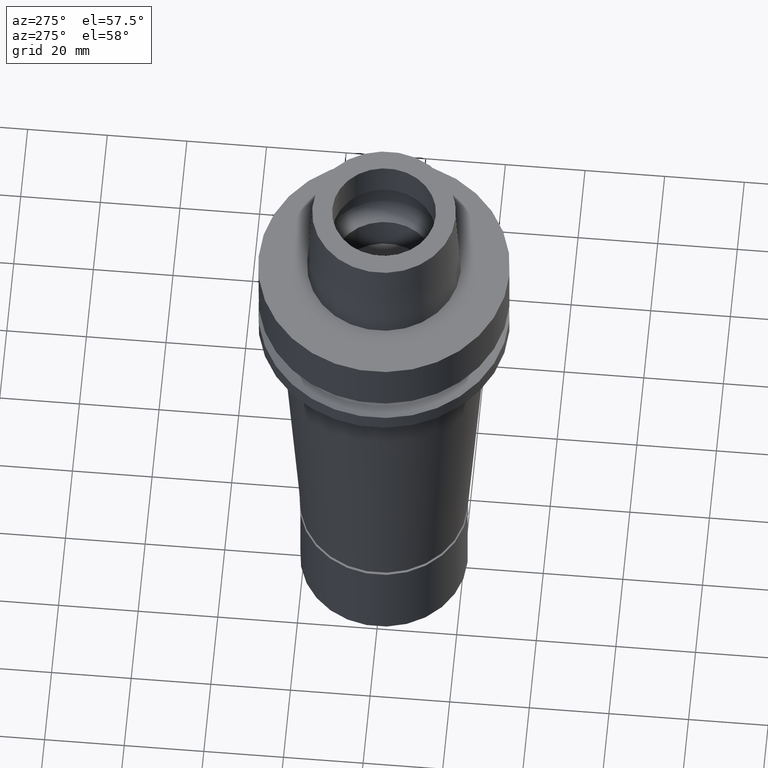
[diagram: clean part render]
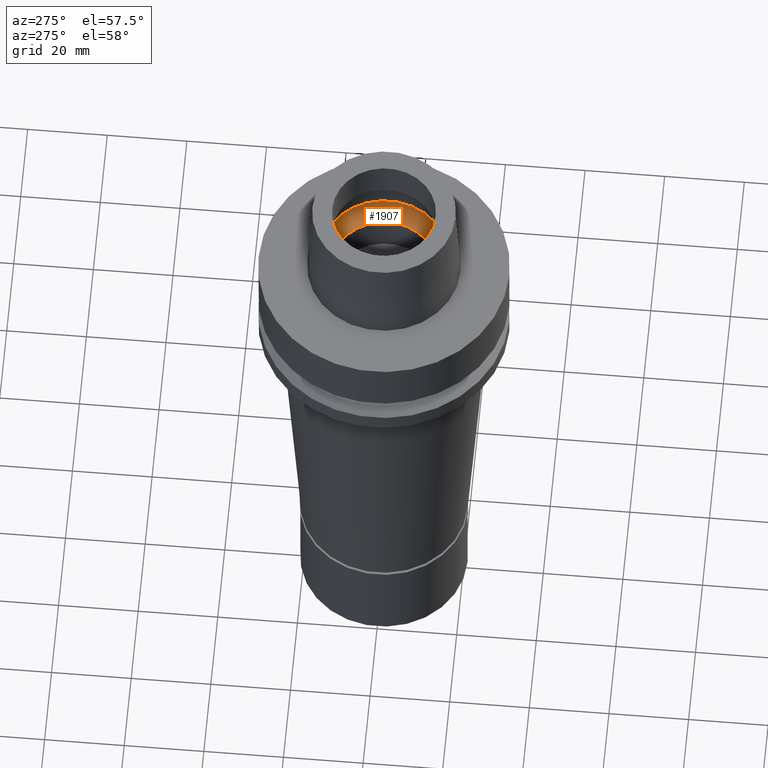
[diagram: same view with one face highlighted and labeled with its STEP entity id]
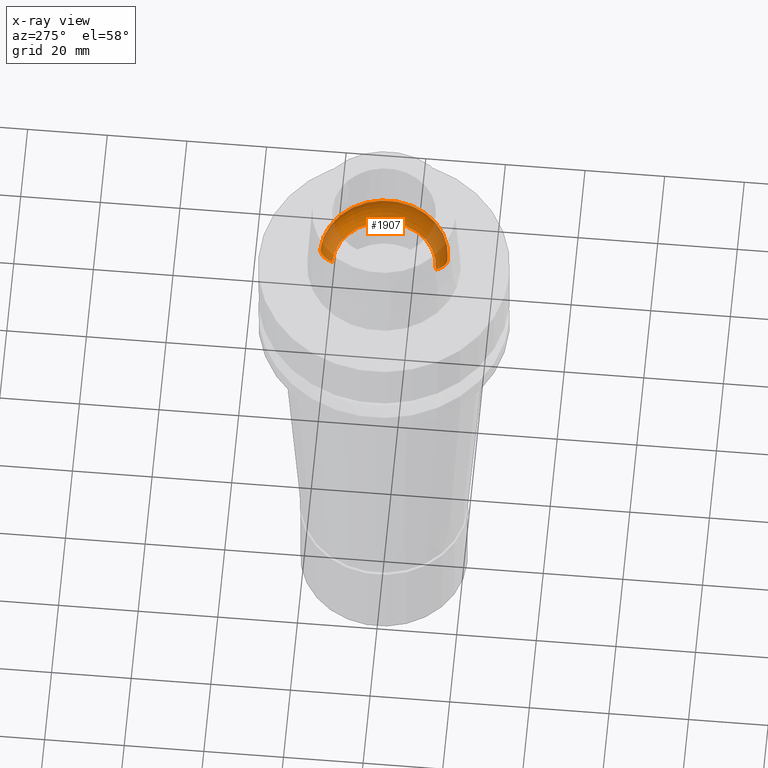
[diagram: x-ray of the same camera — body ghosted, the highlighted face saturated]
A machine part, auxiliary view. The second image highlights one B-rep face of the part: STEP entity #1907.
The next image is the same camera in x-ray: the body ghosted, the highlighted face saturated — about 30% of this face is hidden behind the body in this view.
In plain terms, the highlighted toroidal blend (fillet) surface has major radius 10 mm and minor (blend) radius 6 mm.
Its self-contained STEP definition (entity closure, byte-faithful):
#24 = EDGE_CURVE ( 'NONE', #341, #1594, #2825, .T. ) ;
#41 = AXIS2_PLACEMENT_3D ( 'NONE', #552, #1195, #2345 ) ;
#44 = TOROIDAL_SURFACE ( 'NONE', #2260, 10.00000000000000000, 6.000000000000000000 ) ;
#166 = DIRECTION ( 'NONE',  ( 0.0000000000000000000, 1.000000000000000000, 0.0000000000000000000 ) ) ;
#255 = DIRECTION ( 'NONE',  ( 0.0000000000000000000, 0.5000000000000169864, -0.8660254037844289376 ) ) ;
#341 = VERTEX_POINT ( 'NONE', #1692 ) ;
#368 = AXIS2_PLACEMENT_3D ( 'NONE', #2110, #1042, #1259 ) ;
#393 = CARTESIAN_POINT ( 'NONE',  ( 0.0000000000000000000, 0.0000000000000000000, 5.245999999999999552 ) ) ;
#522 = AXIS2_PLACEMENT_3D ( 'NONE', #1228, #2111, #1011 ) ;
#552 = CARTESIAN_POINT ( 'NONE',  ( 0.0000000000000000000, -10.00000000000000000, 5.245999999999999552 ) ) ;
#649 = DIRECTION ( 'NONE',  ( 0.0000000000000000000, 0.0000000000000000000, 1.000000000000000000 ) ) ;
#1011 = DIRECTION ( 'NONE',  ( 0.0000000000000000000, 1.000000000000000000, 0.0000000000000000000 ) ) ;
#1042 = DIRECTION ( 'NONE',  ( 0.0000000000000000000, 0.0000000000000000000, 1.000000000000000000 ) ) ;
#1060 = EDGE_LOOP ( 'NONE', ( #2696, #2824, #2391, #1733 ) ) ;
#1107 = AXIS2_PLACEMENT_3D ( 'NONE', #1971, #2188, #255 ) ;
#1129 = EDGE_CURVE ( 'NONE', #2778, #341, #1981, .T. ) ;
#1181 = CARTESIAN_POINT ( 'NONE',  ( 0.0000000000000000000, 13.00000000000000000, 0.04984757729343999855 ) ) ;
#1195 = DIRECTION ( 'NONE',  ( -1.000000000000000000, 0.0000000000000000000, 0.0000000000000000000 ) ) ;
#1228 = CARTESIAN_POINT ( 'NONE',  ( 0.0000000000000000000, 0.0000000000000000000, 5.245999999999999552 ) ) ;
#1259 = DIRECTION ( 'NONE',  ( 0.0000000000000000000, -1.000000000000000000, 0.0000000000000000000 ) ) ;
#1293 = CARTESIAN_POINT ( 'NONE',  ( 0.0000000000000000000, -16.00000000000000000, 5.245999999999999552 ) ) ;
#1357 = EDGE_CURVE ( 'NONE', #2669, #2778, #1565, .T. ) ;
#1565 = CIRCLE ( 'NONE', #368, 13.00000000000000000 ) ;
#1594 = VERTEX_POINT ( 'NONE', #1293 ) ;
#1692 = CARTESIAN_POINT ( 'NONE',  ( 0.0000000000000000000, 16.00000000000000000, 5.245999999999999552 ) ) ;
#1733 = ORIENTED_EDGE ( 'NONE', *, *, #1129, .F. ) ;
#1907 = ADVANCED_FACE ( 'NONE', ( #2154 ), #44, .F. ) ;
#1971 = CARTESIAN_POINT ( 'NONE',  ( 0.0000000000000000000, 10.00000000000000000, 5.245999999999999552 ) ) ;
#1981 = CIRCLE ( 'NONE', #1107, 6.000000000000000000 ) ;
#2110 = CARTESIAN_POINT ( 'NONE',  ( 0.0000000000000000000, 0.0000000000000000000, 0.04984757729341000171 ) ) ;
#2111 = DIRECTION ( 'NONE',  ( 0.0000000000000000000, 0.0000000000000000000, -1.000000000000000000 ) ) ;
#2154 = FACE_OUTER_BOUND ( 'NONE', #1060, .T. ) ;
#2166 = CIRCLE ( 'NONE', #41, 6.000000000000000000 ) ;
#2183 = EDGE_CURVE ( 'NONE', #2669, #1594, #2166, .T. ) ;
#2188 = DIRECTION ( 'NONE',  ( 1.000000000000000000, 0.0000000000000000000, 0.0000000000000000000 ) ) ;
#2260 = AXIS2_PLACEMENT_3D ( 'NONE', #393, #649, #166 ) ;
#2345 = DIRECTION ( 'NONE',  ( 0.0000000000000000000, -0.5000000000000169864, -0.8660254037844289376 ) ) ;
#2391 = ORIENTED_EDGE ( 'NONE', *, *, #24, .F. ) ;
#2420 = CARTESIAN_POINT ( 'NONE',  ( 0.0000000000000000000, -13.00000000000000000, 0.04984757729341000171 ) ) ;
#2669 = VERTEX_POINT ( 'NONE', #2420 ) ;
#2696 = ORIENTED_EDGE ( 'NONE', *, *, #1357, .F. ) ;
#2778 = VERTEX_POINT ( 'NONE', #1181 ) ;
#2824 = ORIENTED_EDGE ( 'NONE', *, *, #2183, .T. ) ;
#2825 = CIRCLE ( 'NONE', #522, 16.00000000000000000 ) ;